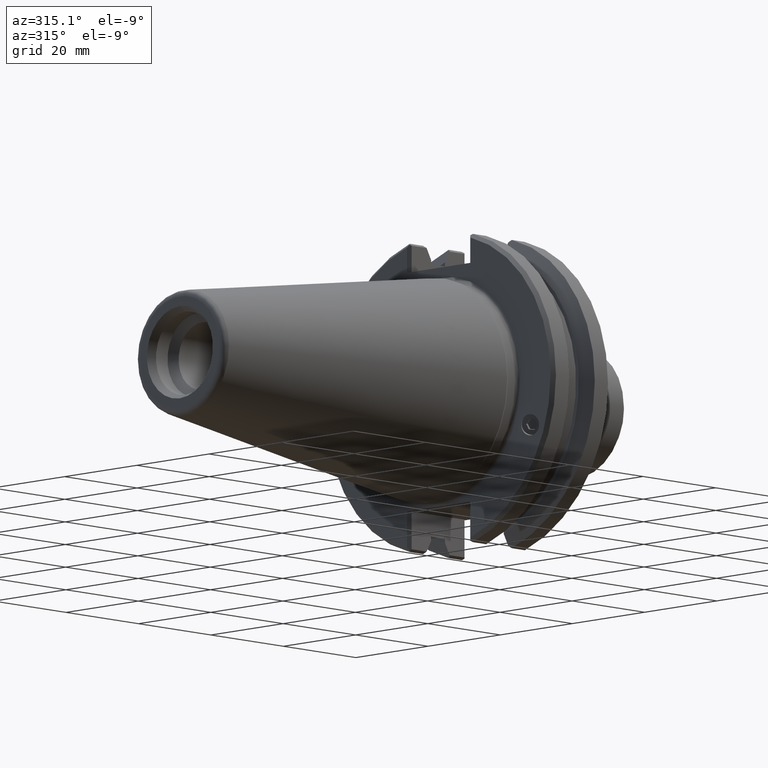
[diagram: clean part render]
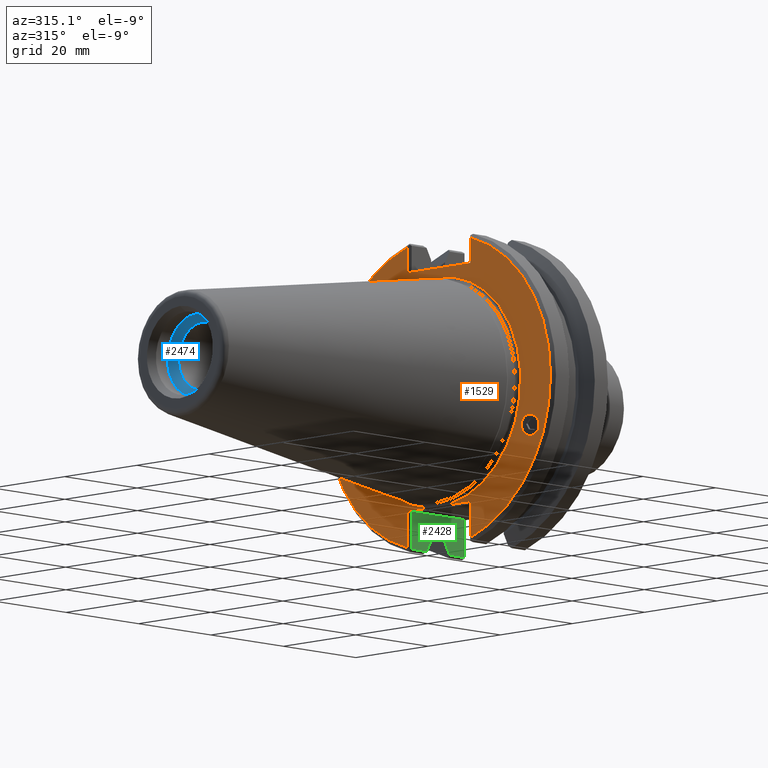
[diagram: same view with three faces highlighted in distinct colors, each labeled with its STEP entity id]
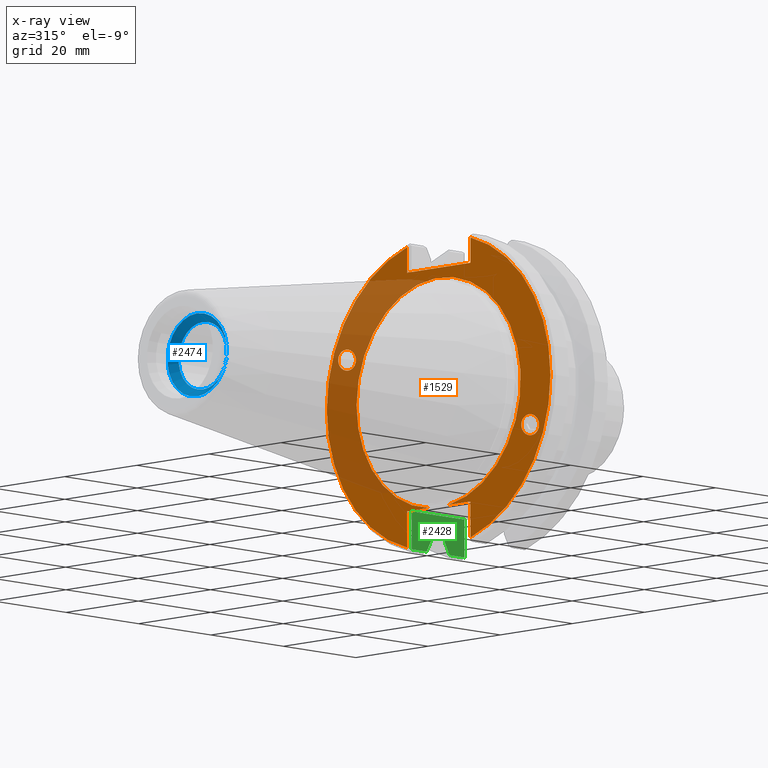
[diagram: x-ray of the same camera — body ghosted, the three highlighted faces saturated]
A machine part, auxiliary view with three faces highlighted in distinct colors.
The next image is the same camera in x-ray (body ghosted, the three faces saturated) — at least one of them is partly hidden behind the body in this view.
Their STEP definitions:

[orange] entity #1529 — the highlighted planar face has unit normal (-1, 0, 0).
#508=CARTESIAN_POINT('',(0.125,-0.906308083098599,-0.329869165322749));
#509=VERTEX_POINT('',#508);
#510=CARTESIAN_POINT('',(0.125,-0.998893255895421,-0.363567412355186));
#511=DIRECTION('',(1.0,0.0,0.0));
#512=DIRECTION('',(0.0,-0.939692620785905,-0.342020143325677));
#513=AXIS2_PLACEMENT_3D('',#510,#511,#512);
#514=ELLIPSE('',#513,0.09852708295122,0.080708661417323);
#515=EDGE_CURVE('',#509,#509,#514,.T.);
#588=CARTESIAN_POINT('',(0.125,0.906308083098599,0.329869165322749));
#589=VERTEX_POINT('',#588);
#590=CARTESIAN_POINT('',(0.125,0.998893255895421,0.363567412355186));
#591=DIRECTION('',(1.0,0.0,0.0));
#592=DIRECTION('',(0.0,0.939692620785905,0.342020143325677));
#593=AXIS2_PLACEMENT_3D('',#590,#591,#592);
#594=ELLIPSE('',#593,0.09852708295122,0.080708661417323);
#595=EDGE_CURVE('',#589,#589,#594,.T.);
#1053=CARTESIAN_POINT('',(0.125,0.344999999999579,0.972));
#1054=VERTEX_POINT('',#1053);
#1061=CARTESIAN_POINT('',(0.125,-0.345000000000422,0.972));
#1062=VERTEX_POINT('',#1061);
#1063=CARTESIAN_POINT('',(0.125,0.344999999999579,0.972));
#1064=DIRECTION('',(0.0,-1.0,0.0));
#1065=VECTOR('',#1064,0.69);
#1066=LINE('',#1063,#1065);
#1067=EDGE_CURVE('',#1054,#1062,#1066,.T.);
#1413=CARTESIAN_POINT('',(0.125,-0.11171839597846,-0.888));
#1414=VERTEX_POINT('',#1413);
#1415=CARTESIAN_POINT('',(0.125,0.11171839597846,-0.888));
#1416=VERTEX_POINT('',#1415);
#1431=CARTESIAN_POINT('',(0.125,0.0,0.0));
#1432=DIRECTION('',(-1.0,0.0,0.0));
#1433=DIRECTION('',(0.0,-1.0,0.0));
#1434=AXIS2_PLACEMENT_3D('',#1431,#1432,#1433);
#1435=CIRCLE('',#1434,0.895);
#1436=EDGE_CURVE('',#1414,#1416,#1435,.T.);
#1452=CARTESIAN_POINT('',(0.125,1.0625,0.0));
#1453=DIRECTION('',(-1.0,0.0,0.0));
#1454=DIRECTION('',(0.0,0.0,1.0));
#1455=AXIS2_PLACEMENT_3D('',#1452,#1453,#1454);
#1456=PLANE('',#1455);
#1457=ORIENTED_EDGE('',*,*,#1436,.F.);
#1458=CARTESIAN_POINT('',(0.125,-0.345000000000358,-0.888));
#1459=VERTEX_POINT('',#1458);
#1460=CARTESIAN_POINT('',(0.125,-0.345000000000358,-0.888));
#1461=DIRECTION('',(0.0,1.0,0.0));
#1462=VECTOR('',#1461,0.233281604021898);
#1463=LINE('',#1460,#1462);
#1464=EDGE_CURVE('',#1459,#1414,#1463,.T.);
#1465=ORIENTED_EDGE('',*,*,#1464,.F.);
#1466=CARTESIAN_POINT('',(0.125,-0.345000000000358,-1.170202973846739));
#1467=VERTEX_POINT('',#1466);
#1468=CARTESIAN_POINT('',(0.125,-0.345000000000358,-1.170202973846739));
#1469=DIRECTION('',(0.0,0.0,1.0));
#1470=VECTOR('',#1469,0.282202973846739);
#1471=LINE('',#1468,#1470);
#1472=EDGE_CURVE('',#1467,#1459,#1471,.T.);
#1473=ORIENTED_EDGE('',*,*,#1472,.F.);
#1474=CARTESIAN_POINT('',(0.125,-0.345000000000422,1.170202973846721));
#1475=VERTEX_POINT('',#1474);
#1476=CARTESIAN_POINT('',(0.125,0.0,0.0));
#1477=DIRECTION('',(1.0,0.0,0.0));
#1478=DIRECTION('',(0.0,-1.0,0.0));
#1479=AXIS2_PLACEMENT_3D('',#1476,#1477,#1478);
#1480=CIRCLE('',#1479,1.22);
#1481=EDGE_CURVE('',#1475,#1467,#1480,.T.);
#1482=ORIENTED_EDGE('',*,*,#1481,.F.);
#1483=CARTESIAN_POINT('',(0.125,-0.345000000000422,0.972));
#1484=DIRECTION('',(0.0,0.0,1.0));
#1485=VECTOR('',#1484,0.198202973846721);
#1486=LINE('',#1483,#1485);
#1487=EDGE_CURVE('',#1062,#1475,#1486,.T.);
#1488=ORIENTED_EDGE('',*,*,#1487,.F.);
#1489=ORIENTED_EDGE('',*,*,#1067,.F.);
#1490=CARTESIAN_POINT('',(0.125,0.344999999999579,1.170202973846969));
#1491=VERTEX_POINT('',#1490);
#1492=CARTESIAN_POINT('',(0.125,0.344999999999579,1.170202973846969));
#1493=DIRECTION('',(0.0,0.0,-1.0));
#1494=VECTOR('',#1493,0.198202973846969);
#1495=LINE('',#1492,#1494);
#1496=EDGE_CURVE('',#1491,#1054,#1495,.T.);
#1497=ORIENTED_EDGE('',*,*,#1496,.F.);
#1498=CARTESIAN_POINT('',(0.125,0.344999999999642,-1.170202973846951));
#1499=VERTEX_POINT('',#1498);
#1500=CARTESIAN_POINT('',(0.125,0.0,0.0));
#1501=DIRECTION('',(1.0,0.0,0.0));
#1502=DIRECTION('',(0.0,1.0,0.0));
#1503=AXIS2_PLACEMENT_3D('',#1500,#1501,#1502);
#1504=CIRCLE('',#1503,1.22);
#1505=EDGE_CURVE('',#1499,#1491,#1504,.T.);
#1506=ORIENTED_EDGE('',*,*,#1505,.F.);
#1507=CARTESIAN_POINT('',(0.125,0.344999999999642,-0.888));
#1508=VERTEX_POINT('',#1507);
#1509=CARTESIAN_POINT('',(0.125,0.344999999999642,-0.888));
#1510=DIRECTION('',(0.0,0.0,-1.0));
#1511=VECTOR('',#1510,0.28220297384695);
#1512=LINE('',#1509,#1511);
#1513=EDGE_CURVE('',#1508,#1499,#1512,.T.);
#1514=ORIENTED_EDGE('',*,*,#1513,.F.);
#1515=CARTESIAN_POINT('',(0.125,0.11171839597846,-0.888));
#1516=DIRECTION('',(0.0,1.0,0.0));
#1517=VECTOR('',#1516,0.233281604021182);
#1518=LINE('',#1515,#1517);
#1519=EDGE_CURVE('',#1416,#1508,#1518,.T.);
#1520=ORIENTED_EDGE('',*,*,#1519,.F.);
#1521=EDGE_LOOP('',(#1457,#1465,#1473,#1482,#1488,#1489,#1497,#1506,#1514,#1520));
#1522=FACE_OUTER_BOUND('',#1521,.T.);
#1523=ORIENTED_EDGE('',*,*,#515,.T.);
#1524=EDGE_LOOP('',(#1523));
#1525=FACE_BOUND('',#1524,.T.);
#1526=ORIENTED_EDGE('',*,*,#595,.T.);
#1527=EDGE_LOOP('',(#1526));
#1528=FACE_BOUND('',#1527,.T.);
#1529=ADVANCED_FACE('',(#1522,#1525,#1528),#1456,.T.);

[blue] entity #2474 — the highlighted conical surface has half-angle 45 deg.
#2443=CARTESIAN_POINT('',(-2.439,3.226838E-017,-0.2635));
#2444=VERTEX_POINT('',#2443);
#2445=CARTESIAN_POINT('',(-2.439,0.0,0.0));
#2446=DIRECTION('',(1.0,0.0,0.0));
#2447=DIRECTION('',(0.0,0.0,1.0));
#2448=AXIS2_PLACEMENT_3D('',#2445,#2446,#2447);
#2449=CIRCLE('',#2448,0.2635);
#2450=EDGE_CURVE('',#2444,#2444,#2449,.T.);
#2455=CARTESIAN_POINT('',(-2.3375,0.0,0.0));
#2456=DIRECTION('',(-1.0,0.0,0.0));
#2457=DIRECTION('',(0.0,0.0,1.0));
#2458=AXIS2_PLACEMENT_3D('',#2455,#2456,#2457);
#2459=CONICAL_SURFACE('',#2458,0.162,45.000000000000007);
#2460=ORIENTED_EDGE('',*,*,#2450,.T.);
#2461=EDGE_LOOP('',(#2460));
#2462=FACE_OUTER_BOUND('',#2461,.T.);
#2463=CARTESIAN_POINT('',(-2.4995,0.0,0.324));
#2464=VERTEX_POINT('',#2463);
#2465=CARTESIAN_POINT('',(-2.4995,0.0,0.0));
#2466=DIRECTION('',(-1.0,0.0,0.0));
#2467=DIRECTION('',(0.0,0.0,1.0));
#2468=AXIS2_PLACEMENT_3D('',#2465,#2466,#2467);
#2469=CIRCLE('',#2468,0.324);
#2470=EDGE_CURVE('',#2464,#2464,#2469,.T.);
#2471=ORIENTED_EDGE('',*,*,#2470,.T.);
#2472=EDGE_LOOP('',(#2471));
#2473=FACE_BOUND('',#2472,.T.);
#2474=ADVANCED_FACE('',(#2462,#2473),#2459,.F.);

[green] entity #2428 — the highlighted planar face has unit normal (0, 1, 0).
#1289=CARTESIAN_POINT('',(0.725000000000006,0.319999999999496,-0.888));
#1290=VERTEX_POINT('',#1289);
#1297=CARTESIAN_POINT('',(0.725000000000006,0.319999999999496,-1.183345976945446));
#1298=VERTEX_POINT('',#1297);
#1299=CARTESIAN_POINT('',(0.725000000000006,0.319999999999496,-0.888));
#1300=DIRECTION('',(0.0,0.0,-1.0));
#1301=VECTOR('',#1300,0.295345976945445);
#1302=LINE('',#1299,#1301);
#1303=EDGE_CURVE('',#1290,#1298,#1302,.T.);
#1375=CARTESIAN_POINT('',(0.56323074045389,0.319999999999535,-1.183345976945446));
#1376=VERTEX_POINT('',#1375);
#1377=CARTESIAN_POINT('',(0.725000000000006,0.319999999999496,-1.183345976945446));
#1378=DIRECTION('',(-1.0,2.436366E-013,0.0));
#1379=VECTOR('',#1378,0.161769259546116);
#1380=LINE('',#1377,#1379);
#1381=EDGE_CURVE('',#1298,#1376,#1380,.T.);
#1600=CARTESIAN_POINT('',(0.313469259546246,0.319999999999596,-1.183345976945475));
#1601=VERTEX_POINT('',#1600);
#1615=CARTESIAN_POINT('',(0.15,0.319999999999636,-1.183345976945475));
#1616=VERTEX_POINT('',#1615);
#1617=CARTESIAN_POINT('',(0.313469259546246,0.319999999999596,-1.183345976945475));
#1618=DIRECTION('',(-1.0,2.434800E-013,0.0));
#1619=VECTOR('',#1618,0.163469259546247);
#1620=LINE('',#1617,#1619);
#1621=EDGE_CURVE('',#1601,#1616,#1620,.T.);
#1677=CARTESIAN_POINT('',(0.362850000000115,0.319999999999584,-1.094499578944604));
#1678=VERTEX_POINT('',#1677);
#1686=CARTESIAN_POINT('',(0.362850000000315,0.319999999999584,-1.094499578944242));
#1687=CARTESIAN_POINT('',(0.339122667172539,0.31999999999959,-1.137317012232452));
#1688=CARTESIAN_POINT('',(0.313469259546246,0.319999999999596,-1.183345976945475));
#1696=(BOUNDED_CURVE()B_SPLINE_CURVE(2,(#1686,#1687,#1688),.UNSPECIFIED.,.F.,.U.)B_SPLINE_CURVE_WITH_KNOTS((3,3),(0.0,0.260803090048957),.UNSPECIFIED.)CURVE()GEOMETRIC_REPRESENTATION_ITEM()RATIONAL_B_SPLINE_CURVE((1.0,1.000895493571437,1.000379364130655))REPRESENTATION_ITEM(''));
#1697=EDGE_CURVE('',#1678,#1601,#1696,.T.);
#2099=CARTESIAN_POINT('',(0.15,0.319999999999636,-0.888));
#2100=VERTEX_POINT('',#2099);
#2101=CARTESIAN_POINT('',(0.15,0.319999999999636,-1.183345976945475));
#2102=DIRECTION('',(0.0,0.0,1.0));
#2103=VECTOR('',#2102,0.295345976945475);
#2104=LINE('',#2101,#2103);
#2105=EDGE_CURVE('',#1616,#2100,#2104,.T.);
#2373=CARTESIAN_POINT('',(0.75499999999957,0.319999999999489,-0.888));
#2374=DIRECTION('',(2.437329E-013,1.0,0.0));
#2375=DIRECTION('',(0.0,0.0,1.0));
#2376=AXIS2_PLACEMENT_3D('',#2373,#2374,#2375);
#2377=PLANE('',#2376);
#2378=ORIENTED_EDGE('',*,*,#1303,.F.);
#2379=CARTESIAN_POINT('',(0.15,0.319999999999636,-0.888));
#2380=DIRECTION('',(1.0,-2.436698E-013,0.0));
#2381=VECTOR('',#2380,0.575000000000006);
#2382=LINE('',#2379,#2381);
#2383=EDGE_CURVE('',#2100,#1290,#2382,.T.);
#2384=ORIENTED_EDGE('',*,*,#2383,.F.);
#2385=ORIENTED_EDGE('',*,*,#2105,.F.);
#2386=ORIENTED_EDGE('',*,*,#1621,.F.);
#2387=ORIENTED_EDGE('',*,*,#1697,.F.);
#2388=CARTESIAN_POINT('',(0.362850000000122,0.319999999999584,-1.0623512837103));
#2389=VERTEX_POINT('',#2388);
#2390=CARTESIAN_POINT('',(0.362850000000118,0.319999999999584,-1.0623512837103));
#2391=DIRECTION('',(0.0,0.0,-1.0));
#2392=VECTOR('',#2391,0.032148295234303);
#2393=LINE('',#2390,#2392);
#2394=EDGE_CURVE('',#2389,#1678,#2393,.T.);
#2395=ORIENTED_EDGE('',*,*,#2394,.F.);
#2396=CARTESIAN_POINT('',(0.513850000000122,0.319999999999547,-1.062351283710339));
#2397=VERTEX_POINT('',#2396);
#2398=CARTESIAN_POINT('',(0.513850000000122,0.319999999999547,-1.06235128371032));
#2399=DIRECTION('',(-1.0,2.433668E-013,0.0));
#2400=VECTOR('',#2399,0.151);
#2401=LINE('',#2398,#2400);
#2402=EDGE_CURVE('',#2397,#2389,#2401,.T.);
#2403=ORIENTED_EDGE('',*,*,#2402,.F.);
#2404=CARTESIAN_POINT('',(0.513850000000115,0.319999999999547,-1.094499578944642));
#2405=VERTEX_POINT('',#2404);
#2406=CARTESIAN_POINT('',(0.513850000000118,0.319999999999547,-1.094499578944642));
#2407=DIRECTION('',(0.0,0.0,1.0));
#2408=VECTOR('',#2407,0.032148295234303);
#2409=LINE('',#2406,#2408);
#2410=EDGE_CURVE('',#2405,#2397,#2409,.T.);
#2411=ORIENTED_EDGE('',*,*,#2410,.F.);
#2412=CARTESIAN_POINT('',(0.56323074045389,0.319999999999535,-1.183345976945446));
#2413=CARTESIAN_POINT('',(0.537577332827056,0.319999999999542,-1.137317012231399));
#2414=CARTESIAN_POINT('',(0.513849999999759,0.319999999999547,-1.094499578943999));
#2422=(BOUNDED_CURVE()B_SPLINE_CURVE(2,(#2412,#2413,#2414),.UNSPECIFIED.,.F.,.U.)B_SPLINE_CURVE_WITH_KNOTS((3,3),(0.070089065330559,0.330892155381497),.UNSPECIFIED.)CURVE()GEOMETRIC_REPRESENTATION_ITEM()RATIONAL_B_SPLINE_CURVE((1.000379364131209,1.000895493572771,1.0))REPRESENTATION_ITEM(''));
#2423=EDGE_CURVE('',#1376,#2405,#2422,.T.);
#2424=ORIENTED_EDGE('',*,*,#2423,.F.);
#2425=ORIENTED_EDGE('',*,*,#1381,.F.);
#2426=EDGE_LOOP('',(#2378,#2384,#2385,#2386,#2387,#2395,#2403,#2411,#2424,#2425));
#2427=FACE_OUTER_BOUND('',#2426,.T.);
#2428=ADVANCED_FACE('',(#2427),#2377,.F.);